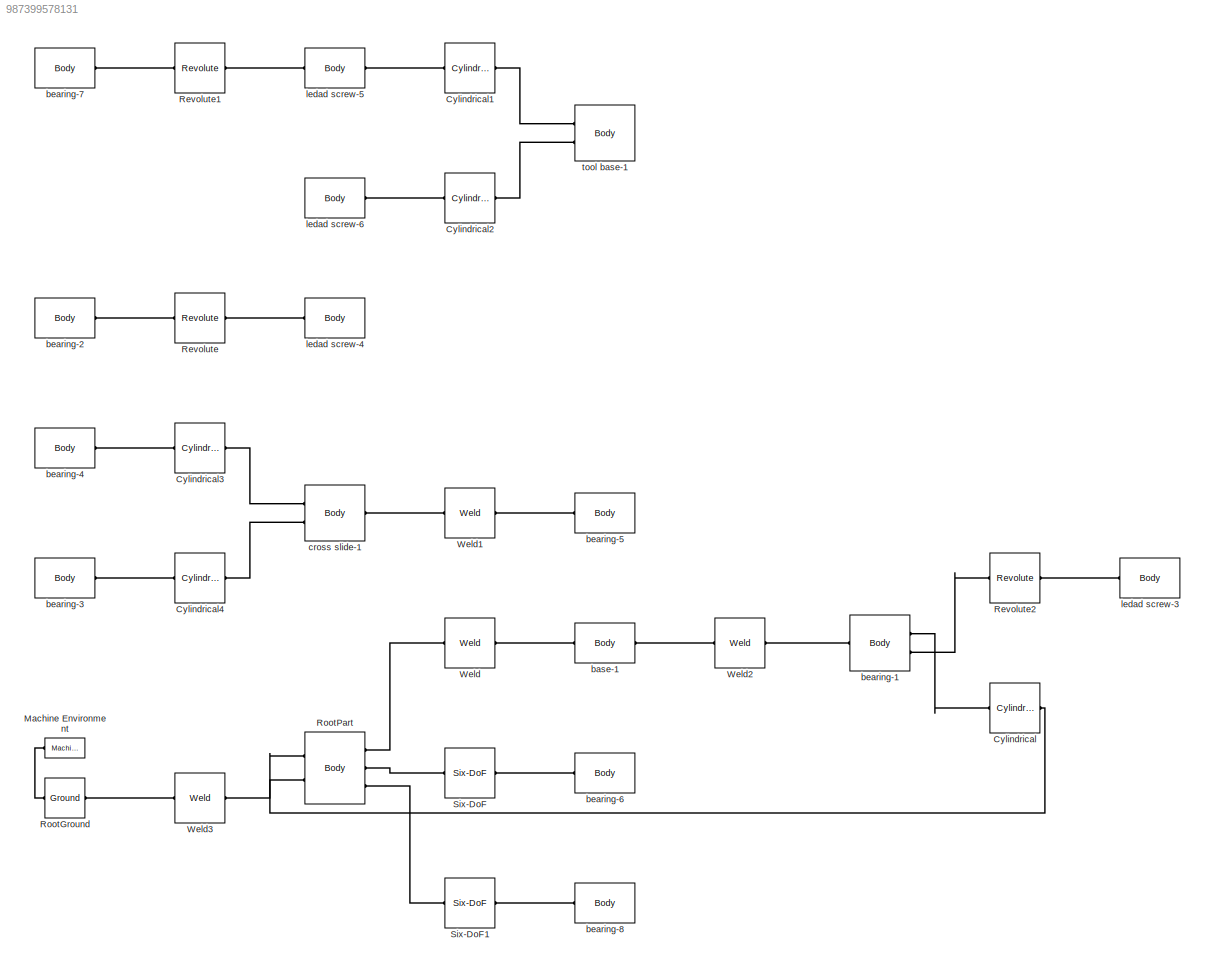
MODEL slx_987399578131
KIND model
CONFIG AbsTol = auto
CONFIG FixedStep = auto
CONFIG MaxStep = auto
CONFIG MinStep = auto
CONFIG RelTol = 1e-3
CONFIG SampleTimeConstraint = Unconstrained
CONFIG Solver = VariableStepAuto
CONFIG SolverMode = Auto
CONFIG SolverName = VariableStepAuto
CONFIG StartTime = 0.0
CONFIG StopTime = 10.0
BLOCK [Reference] Cylindrical  REF=mblibv1/Joints/Cylindrical
  Ports = [0, 0, 0, 0, 0, 1, 1]
  SourceBlock = mblibv1/Joints/Cylindrical
  SourceType = Cylindrical
BLOCK [Reference] Cylindrical1  REF=mblibv1/Joints/Cylindrical
  Ports = [0, 0, 0, 0, 0, 1, 1]
  SourceBlock = mblibv1/Joints/Cylindrical
  SourceType = Cylindrical
BLOCK [Reference] Cylindrical2  REF=mblibv1/Joints/Cylindrical
  Ports = [0, 0, 0, 0, 0, 1, 1]
  SourceBlock = mblibv1/Joints/Cylindrical
  SourceType = Cylindrical
BLOCK [Reference] Cylindrical3  REF=mblibv1/Joints/Cylindrical
  Ports = [0, 0, 0, 0, 0, 1, 1]
  SourceBlock = mblibv1/Joints/Cylindrical
  SourceType = Cylindrical
BLOCK [Reference] Cylindrical4  REF=mblibv1/Joints/Cylindrical
  Ports = [0, 0, 0, 0, 0, 1, 1]
  SourceBlock = mblibv1/Joints/Cylindrical
  SourceType = Cylindrical
BLOCK [Reference] Machine Environment  REF=mblibv1/Bodies/Machine
Environment
  Ports = [0, 0, 0, 0, 0, 0, 1]
  SourceBlock = mblibv1/Bodies/Machine\nEnvironment
  SourceType = Machine Environment
BLOCK [Reference] Revolute  REF=mblibv1/Joints/Revolute
  Ports = [0, 0, 0, 0, 0, 1, 1]
  SourceBlock = mblibv1/Joints/Revolute
  SourceType = Revolute
BLOCK [Reference] Revolute1  REF=mblibv1/Joints/Revolute
  Ports = [0, 0, 0, 0, 0, 1, 1]
  SourceBlock = mblibv1/Joints/Revolute
  SourceType = Revolute
BLOCK [Reference] Revolute2  REF=mblibv1/Joints/Revolute
  Ports = [0, 0, 0, 0, 0, 1, 1]
  SourceBlock = mblibv1/Joints/Revolute
  SourceType = Revolute
BLOCK [Reference] RootGround  REF=mblibv1/Bodies/Ground
  Ports = [0, 0, 0, 0, 0, 1, 1]
  SourceBlock = mblibv1/Bodies/Ground
  SourceType = Ground
  UserDataPersistent = on
BLOCK [Reference] RootPart  REF=mblibv1/Bodies/Body
  Ports = [0, 0, 0, 0, 0, 2, 3]
  SourceBlock = mblibv1/Bodies/Body
  SourceType = Body
BLOCK [Reference] Six-DoF  REF=mblibv1/Joints/Six-DoF
  Ports = [0, 0, 0, 0, 0, 1, 1]
  SourceBlock = mblibv1/Joints/Six-DoF
  SourceType = Six-DoF
BLOCK [Reference] Six-DoF1  REF=mblibv1/Joints/Six-DoF
  Ports = [0, 0, 0, 0, 0, 1, 1]
  SourceBlock = mblibv1/Joints/Six-DoF
  SourceType = Six-DoF
BLOCK [Reference] Weld  REF=mblibv1/Joints/Weld
  Ports = [0, 0, 0, 0, 0, 1, 1]
  SourceBlock = mblibv1/Joints/Weld
  SourceType = Weld
BLOCK [Reference] Weld1  REF=mblibv1/Joints/Weld
  Ports = [0, 0, 0, 0, 0, 1, 1]
  SourceBlock = mblibv1/Joints/Weld
  SourceType = Weld
BLOCK [Reference] Weld2  REF=mblibv1/Joints/Weld
  Ports = [0, 0, 0, 0, 0, 1, 1]
  SourceBlock = mblibv1/Joints/Weld
  SourceType = Weld
BLOCK [Reference] Weld3  REF=mblibv1/Joints/Weld
  Ports = [0, 0, 0, 0, 0, 1, 1]
  SourceBlock = mblibv1/Joints/Weld
  SourceType = Weld
BLOCK [Reference] base-1  REF=mblibv1/Bodies/Body
  Ports = [0, 0, 0, 0, 0, 1, 1]
  SourceBlock = mblibv1/Bodies/Body
  SourceType = Body
BLOCK [Reference] bearing-1  REF=mblibv1/Bodies/Body
  Ports = [0, 0, 0, 0, 0, 1, 2]
  SourceBlock = mblibv1/Bodies/Body
  SourceType = Body
BLOCK [Reference] bearing-2  REF=mblibv1/Bodies/Body
  Ports = [0, 0, 0, 0, 0, 0, 1]
  SourceBlock = mblibv1/Bodies/Body
  SourceType = Body
BLOCK [Reference] bearing-3  REF=mblibv1/Bodies/Body
  Ports = [0, 0, 0, 0, 0, 0, 1]
  SourceBlock = mblibv1/Bodies/Body
  SourceType = Body
BLOCK [Reference] bearing-4  REF=mblibv1/Bodies/Body
  Ports = [0, 0, 0, 0, 0, 0, 1]
  SourceBlock = mblibv1/Bodies/Body
  SourceType = Body
BLOCK [Reference] bearing-5  REF=mblibv1/Bodies/Body
  Ports = [0, 0, 0, 0, 0, 1]
  SourceBlock = mblibv1/Bodies/Body
  SourceType = Body
BLOCK [Reference] bearing-6  REF=mblibv1/Bodies/Body
  Ports = [0, 0, 0, 0, 0, 1]
  SourceBlock = mblibv1/Bodies/Body
  SourceType = Body
BLOCK [Reference] bearing-7  REF=mblibv1/Bodies/Body
  Ports = [0, 0, 0, 0, 0, 0, 1]
  SourceBlock = mblibv1/Bodies/Body
  SourceType = Body
BLOCK [Reference] bearing-8  REF=mblibv1/Bodies/Body
  Ports = [0, 0, 0, 0, 0, 1]
  SourceBlock = mblibv1/Bodies/Body
  SourceType = Body
BLOCK [Reference] cross slide-1  REF=mblibv1/Bodies/Body
  Ports = [0, 0, 0, 0, 0, 2, 1]
  SourceBlock = mblibv1/Bodies/Body
  SourceType = Body
BLOCK [Reference] ledad screw-3  REF=mblibv1/Bodies/Body
  Ports = [0, 0, 0, 0, 0, 1]
  SourceBlock = mblibv1/Bodies/Body
  SourceType = Body
BLOCK [Reference] ledad screw-4  REF=mblibv1/Bodies/Body
  Ports = [0, 0, 0, 0, 0, 1]
  SourceBlock = mblibv1/Bodies/Body
  SourceType = Body
BLOCK [Reference] ledad screw-5  REF=mblibv1/Bodies/Body
  Ports = [0, 0, 0, 0, 0, 1, 1]
  SourceBlock = mblibv1/Bodies/Body
  SourceType = Body
BLOCK [Reference] ledad screw-6  REF=mblibv1/Bodies/Body
  Ports = [0, 0, 0, 0, 0, 0, 1]
  SourceBlock = mblibv1/Bodies/Body
  SourceType = Body
BLOCK [Reference] tool base-1  REF=mblibv1/Bodies/Body
  Ports = [0, 0, 0, 0, 0, 2]
  SourceBlock = mblibv1/Bodies/Body
  SourceType = Body
PLINE Cylindrical1:LConn1 -- ledad screw-5:RConn1
PLINE Cylindrical1:RConn1 -- tool base-1:LConn1
PLINE Cylindrical2:LConn1 -- ledad screw-6:RConn1
PLINE Cylindrical2:RConn1 -- tool base-1:LConn2
PLINE Cylindrical3:LConn1 -- bearing-4:RConn1
PLINE Cylindrical3:RConn1 -- cross slide-1:LConn1
PLINE Cylindrical4:LConn1 -- bearing-3:RConn1
PLINE Cylindrical4:RConn1 -- cross slide-1:LConn2
PLINE Cylindrical:LConn1 -- bearing-1:RConn1
PLINE Cylindrical:RConn1 -- RootPart:LConn1
PLINE Machine Environment:RConn1 -- RootGround:LConn1
PLINE Revolute1:LConn1 -- bearing-7:RConn1
PLINE Revolute1:RConn1 -- ledad screw-5:LConn1
PLINE Revolute2:LConn1 -- bearing-1:RConn2
PLINE Revolute2:RConn1 -- ledad screw-3:LConn1
PLINE Revolute:LConn1 -- bearing-2:RConn1
PLINE Revolute:RConn1 -- ledad screw-4:LConn1
PLINE RootGround:RConn1 -- Weld3:LConn1
PLINE RootPart:LConn2 -- Weld3:RConn1
PLINE RootPart:RConn1 -- Weld:LConn1
PLINE RootPart:RConn2 -- Six-DoF:LConn1
PLINE RootPart:RConn3 -- Six-DoF1:LConn1
PLINE Six-DoF1:RConn1 -- bearing-8:LConn1
PLINE Six-DoF:RConn1 -- bearing-6:LConn1
PLINE Weld1:LConn1 -- cross slide-1:RConn1
PLINE Weld1:RConn1 -- bearing-5:LConn1
PLINE Weld2:LConn1 -- base-1:RConn1
PLINE Weld2:RConn1 -- bearing-1:LConn1
PLINE Weld:RConn1 -- base-1:LConn1
